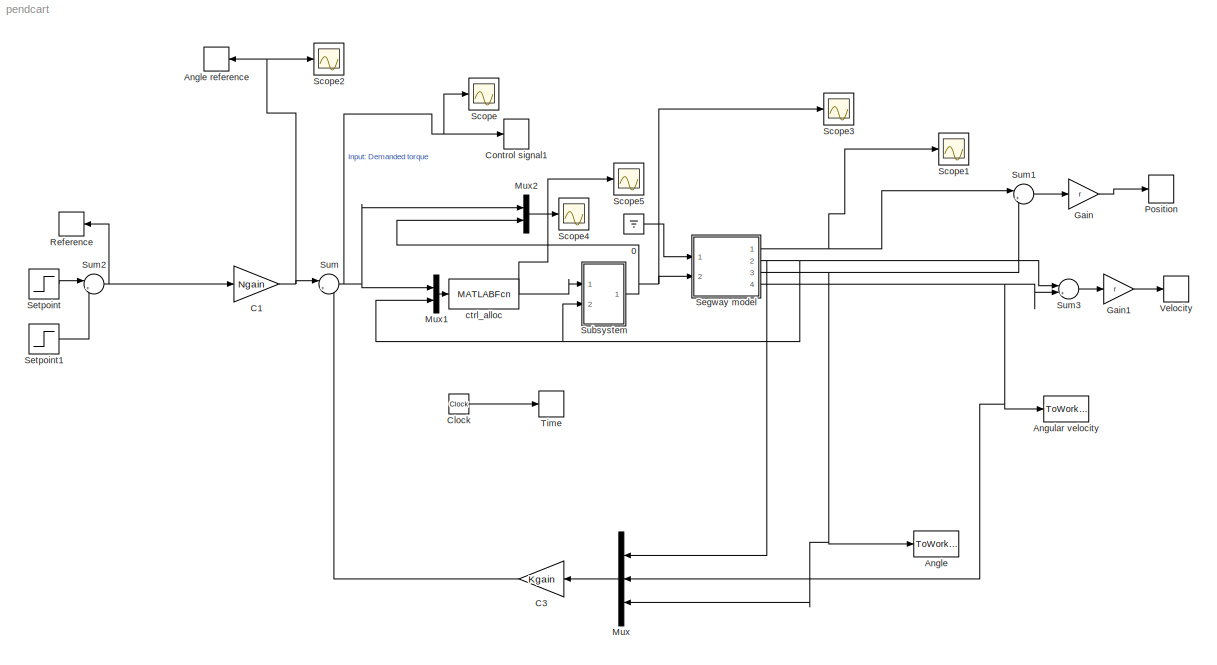
MODEL pendcart
KIND model
BLOCK [Ground] 0
  SID = 94
BLOCK [ToWorkspace] Angle
  MaxDataPoints = inf
  Ports = [1]
  SID = 1
  SampleTime = -1
  VariableName = theta
BLOCK [ToWorkspace] Angle reference
  MaxDataPoints = inf
  Ports = [1]
  SID = 2
  SampleTime = -1
  VariableName = ri
BLOCK [ToWorkspace] Angular velocity
  MaxDataPoints = inf
  Ports = [1]
  SID = 3
  SampleTime = -1
  VariableName = omega
BLOCK [Gain] C1
  Gain = Ngain
  OutDataTypeStr = Inherit: Inherit via internal rule
  ParamDataTypeStr = Inherit: Inherit via internal rule
  SID = 181
  SaturateOnIntegerOverflow = off
BLOCK [Gain] C3
  Gain = Kgain
  Multiplication = Matrix(K*u)
  OutDataTypeStr = Inherit: Inherit via internal rule
  ParamDataTypeStr = Inherit: Inherit via internal rule
  SID = 163
  SaturateOnIntegerOverflow = off
BLOCK [Clock] Clock
  SID = 4
BLOCK [ToWorkspace] Control signal1
  MaxDataPoints = inf
  Ports = [1]
  SID = 5
  SampleTime = -1
  VariableName = u
BLOCK [Gain] Gain
  Gain = r
  OutDataTypeStr = Inherit: Inherit via internal rule
  ParamDataTypeStr = Inherit: Inherit via internal rule
  SID = 170
  SaturateOnIntegerOverflow = off
BLOCK [Gain] Gain1
  Gain = r
  OutDataTypeStr = Inherit: Inherit via internal rule
  ParamDataTypeStr = Inherit: Inherit via internal rule
  SID = 172
  SaturateOnIntegerOverflow = off
BLOCK [Mux] Mux
  DisplayOption = bar
  Inputs = 3
  Ports = [3, 1]
  SID = 164
BLOCK [Mux] Mux1
  DisplayOption = bar
  Inputs = 2
  Ports = [2, 1]
  SID = 205
BLOCK [Mux] Mux2
  DisplayOption = bar
  Inputs = 2
  Ports = [2, 1]
  SID = 225
BLOCK [ToWorkspace] Position
  MaxDataPoints = inf
  Ports = [1]
  SID = 32
  SampleTime = -1
  VariableName = x
BLOCK [ToWorkspace] Reference
  MaxDataPoints = inf
  Ports = [1]
  SID = 33
  SampleTime = -1
  VariableName = r
BLOCK [Scope] Scope
  NumInputPorts = 1
  Ports = [1]
  SID = 165
  ScopeSpecificationString = Simulink.scopes.TimeScopeBlockCfg('CurrentConfiguration', extmgr.ConfigurationSet(extmgr.Configuration('Core','General UI',true),extmgr.Configuration('Core','Source UI',true),extmgr.Configuration('Sources','WiredSimulink',true),extmgr.Configuration('Visuals','Time Domain',true,'SerializedDisplays',{struct('MinYLimReal','-8.77017','MaxYLimReal','8.76972','YLabelReal','','MinYLimMag','0.00000','MaxY...<+1397ch>
BLOCK [Scope] Scope1
  NumInputPorts = 1
  Ports = [1]
  SID = 166
  ScopeSpecificationString = Simulink.scopes.TimeScopeBlockCfg('CurrentConfiguration', extmgr.ConfigurationSet(extmgr.Configuration('Core','General UI',true),extmgr.Configuration('Core','Source UI',true),extmgr.Configuration('Sources','WiredSimulink',true,'DataLoggingVariableName','ScopeData1'),extmgr.Configuration('Visuals','Time Domain',true,'SerializedDisplays',{struct('MinYLimReal','-242452.87703','MaxYLimReal','2181906.5...<+1470ch>
BLOCK [Scope] Scope2
  NumInputPorts = 1
  Ports = [1]
  SID = 167
  ScopeSpecificationString = Simulink.scopes.TimeScopeBlockCfg('CurrentConfiguration', extmgr.ConfigurationSet(extmgr.Configuration('Core','General UI',true),extmgr.Configuration('Core','Source UI',true),extmgr.Configuration('Sources','WiredSimulink',true,'DataLoggingVariableName','ScopeData1'),extmgr.Configuration('Visuals','Time Domain',true,'SerializedDisplays',{struct('MinYLimReal','-7.89219','MaxYLimReal','0.87691','YLab...<+1416ch>
BLOCK [Scope] Scope3
  NumInputPorts = 1
  Ports = [1]
  SID = 208
  ScopeSpecificationString = Simulink.scopes.TimeScopeBlockCfg('CurrentConfiguration', extmgr.ConfigurationSet(extmgr.Configuration('Core','General UI',true),extmgr.Configuration('Core','Source UI',true),extmgr.Configuration('Sources','WiredSimulink',true,'DataLoggingVariableName','ScopeData2'),extmgr.Configuration('Visuals','Time Domain',true,'SerializedDisplays',{struct('MinYLimReal','-0.58356','MaxYLimReal','0.62893','YLab...<+1423ch>
BLOCK [Scope] Scope4
  NumInputPorts = 1
  Ports = [1]
  SID = 226
  ScopeSpecificationString = Simulink.scopes.TimeScopeBlockCfg('CurrentConfiguration', extmgr.ConfigurationSet(extmgr.Configuration('Core','General UI',true),extmgr.Configuration('Core','Source UI',true),extmgr.Configuration('Sources','WiredSimulink',true,'DataLoggingVariableName','ScopeData1'),extmgr.Configuration('Visuals','Time Domain',true,'SerializedDisplays',{struct('MinYLimReal','-3.38216','MaxYLimReal','21.59294','YLa...<+1471ch>
BLOCK [Scope] Scope5
  NumInputPorts = 1
  Ports = [1]
  SID = 231
  ScopeSpecificationString = Simulink.scopes.TimeScopeBlockCfg('CurrentConfiguration', extmgr.ConfigurationSet(extmgr.Configuration('Core','General UI',true),extmgr.Configuration('Core','Source UI',true),extmgr.Configuration('Sources','WiredSimulink',true,'DataLoggingVariableName','ScopeData2'),extmgr.Configuration('Visuals','Time Domain',true,'SerializedDisplays',{struct('MinYLimReal','-504.87276','MaxYLimReal','596.69683','...<+1470ch>
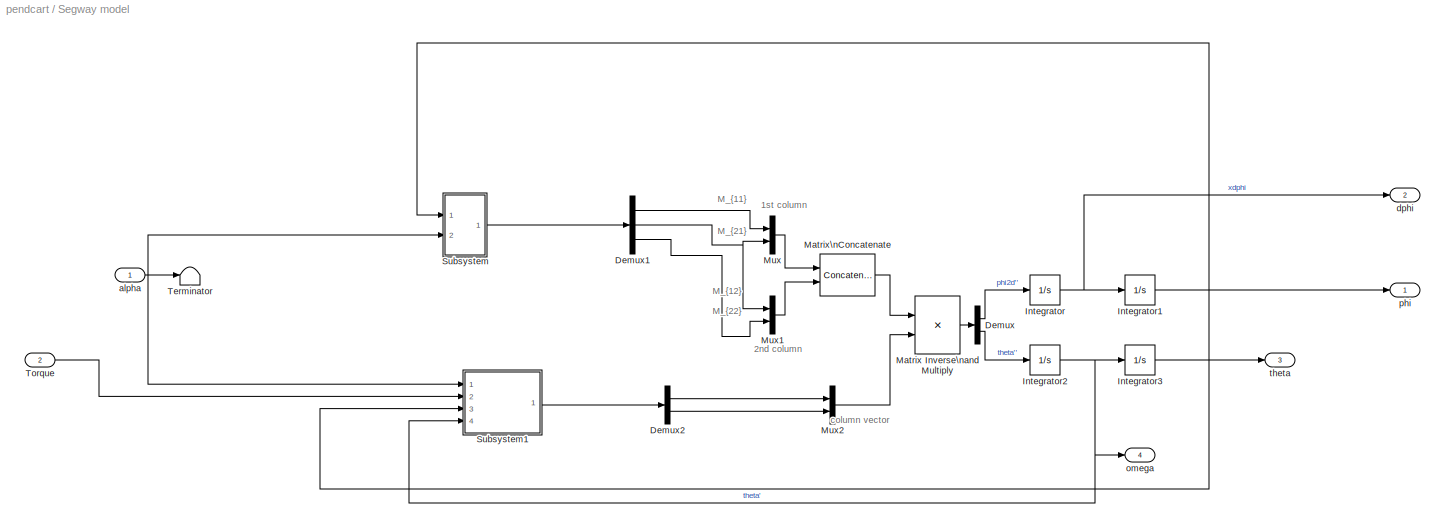
BLOCK [SubSystem] Segway model
  Ports = [2, 4]
  RequestExecContextInheritance = off
  SID = 16
  Variant = off
BLOCK [Demux] Segway model/Demux
  DisplayOption = bar
  Outputs = 2
  Ports = [1, 2]
  SID = 101
BLOCK [Demux] Segway model/Demux1
  DisplayOption = bar
  Outputs = 3
  Ports = [1, 3]
  SID = 133
BLOCK [Demux] Segway model/Demux2
  DisplayOption = bar
  Outputs = 2
  Ports = [1, 2]
  SID = 146
BLOCK [Integrator] Segway model/Integrator
  Ports = [1, 1]
  SID = 46
BLOCK [Integrator] Segway model/Integrator1
  Ports = [1, 1]
  SID = 47
BLOCK [Integrator] Segway model/Integrator2
  Ports = [1, 1]
  SID = 50
BLOCK [Integrator] Segway model/Integrator3
  InitialCondition = theta0
  Ports = [1, 1]
  SID = 51
BLOCK [Product] Segway model/Matrix Inverse\nand Multiply
  InputSameDT = off
  Inputs = /*
  Multiplication = Matrix(*)
  OutDataTypeStr = Inherit: Inherit via internal rule
  Ports = [2, 1]
  RndMeth = Floor
  SID = 98
  SaturateOnIntegerOverflow = off
BLOCK [Concatenate] Segway model/Matrix\nConcatenate
  ConcatenateDimension = 2
  Mode = Multidimensional array
  Ports = [2, 1]
  SID = 100
BLOCK [Mux] Segway model/Mux
  DisplayOption = bar
  Inputs = 2
  Ports = [2, 1]
  SID = 102
BLOCK [Mux] Segway model/Mux1
  DisplayOption = bar
  Inputs = 2
  Ports = [2, 1]
  SID = 103
BLOCK [Mux] Segway model/Mux2
  DisplayOption = bar
  Inputs = 2
  Ports = [2, 1]
  SID = 106
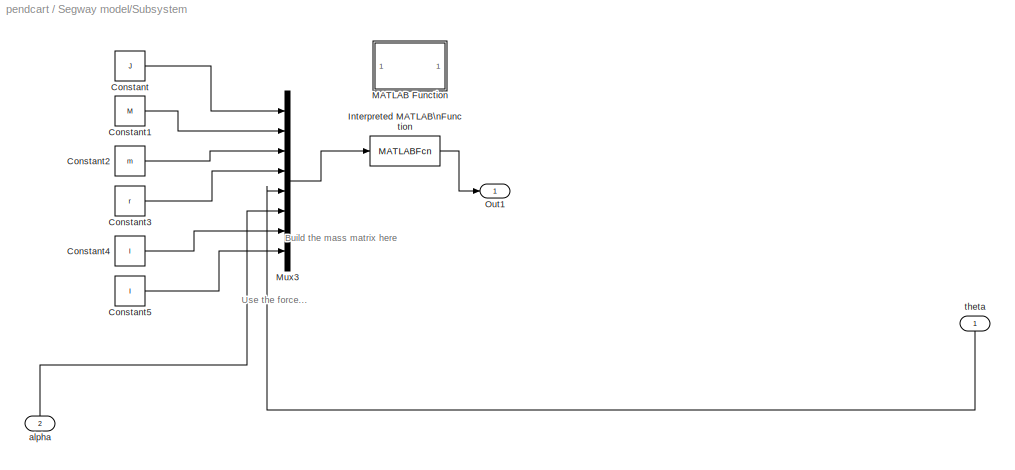
BLOCK [SubSystem] Segway model/Subsystem
  Ports = [2, 1]
  RequestExecContextInheritance = off
  SID = 141
  Variant = off
BLOCK [Constant] Segway model/Subsystem/Constant
  SID = 135
  Value = J
BLOCK [Constant] Segway model/Subsystem/Constant1
  SID = 136
  Value = M
BLOCK [Constant] Segway model/Subsystem/Constant2
  SID = 137
  Value = m
BLOCK [Constant] Segway model/Subsystem/Constant3
  SID = 138
  Value = r
BLOCK [Constant] Segway model/Subsystem/Constant4
  SID = 139
  Value = l
BLOCK [Constant] Segway model/Subsystem/Constant5
  SID = 140
  Value = I
BLOCK [MATLABFcn] Segway model/Subsystem/Interpreted MATLAB\nFunction
  MATLABFcn = massMat
  Ports = [1, 1]
  SID = 169
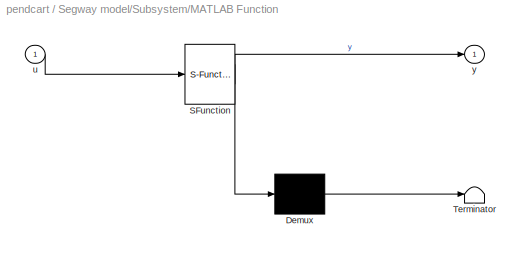
BLOCK [SubSystem] Segway model/Subsystem/MATLAB Function
  Commented = on
  ErrorFcn = Stateflow.Translate.translate
  PermitHierarchicalResolution = ExplicitOnly
  Ports = [1, 1]
  RequestExecContextInheritance = off
  SFBlockType = MATLAB Function
  SID = 132
  TreatAsAtomicUnit = on
  Variant = off
BLOCK [Demux] Segway model/Subsystem/MATLAB Function/ Demux 
  Outputs = 1
  Ports = [1, 1]
  SID = 132::20
BLOCK [S-Function] Segway model/Subsystem/MATLAB Function/ SFunction 
  EnableBusSupport = on
  FunctionName = sf_sfun
  PortCounts = [1 2]
  Ports = [1, 2]
  SFcnIsStateOwnerBlock = off
  SFunctionDeploymentMode = off
  SID = 132::19
  Tag = Stateflow S-Function pendcart 2
BLOCK [Terminator] Segway model/Subsystem/MATLAB Function/ Terminator 
  SID = 132::21
BLOCK [Inport] Segway model/Subsystem/MATLAB Function/u
  IconDisplay = Port number
  SID = 132::1
BLOCK [Outport] Segway model/Subsystem/MATLAB Function/y
  IconDisplay = Port number
  SID = 132::5
BLOCK [Mux] Segway model/Subsystem/Mux3
  DisplayOption = bar
  Inputs = 8
  Ports = [8, 1]
  SID = 134
BLOCK [Outport] Segway model/Subsystem/Out1
  IconDisplay = Port number
  SID = 144
BLOCK [Inport] Segway model/Subsystem/alpha
  IconDisplay = Port number
  Port = 2
  SID = 143
BLOCK [Inport] Segway model/Subsystem/theta
  IconDisplay = Port number
  SID = 142
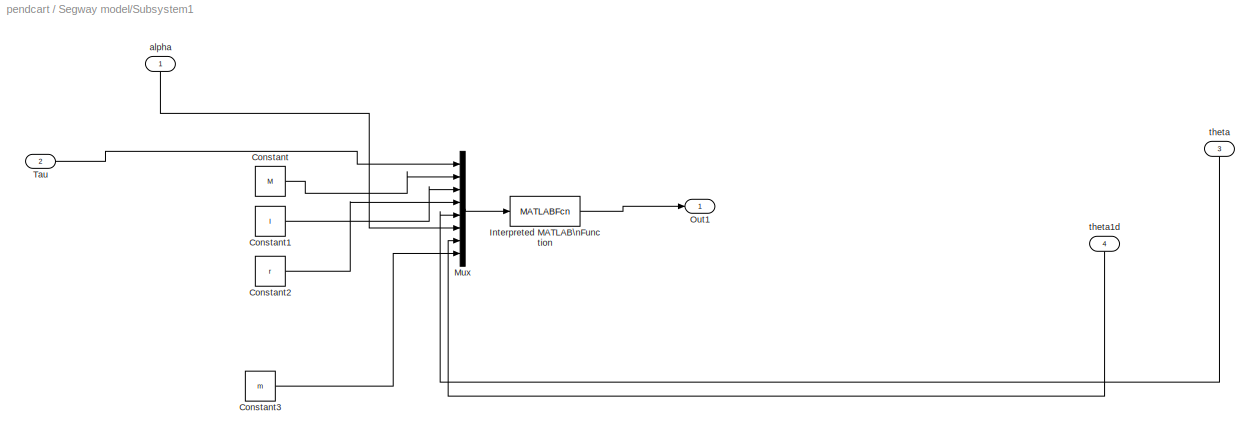
BLOCK [SubSystem] Segway model/Subsystem1
  Ports = [4, 1]
  RequestExecContextInheritance = off
  SID = 153
  Variant = off
BLOCK [Constant] Segway model/Subsystem1/Constant
  SID = 149
  Value = M
BLOCK [Constant] Segway model/Subsystem1/Constant1
  SID = 150
  Value = l
BLOCK [Constant] Segway model/Subsystem1/Constant2
  SID = 151
  Value = r
BLOCK [Constant] Segway model/Subsystem1/Constant3
  SID = 152
  Value = m
BLOCK [MATLABFcn] Segway model/Subsystem1/Interpreted MATLAB\nFunction
  MATLABFcn = ElementMatrix
  Ports = [1, 1]
  SID = 174
BLOCK [Mux] Segway model/Subsystem1/Mux
  DisplayOption = bar
  Inputs = 8
  Ports = [8, 1]
  SID = 175
BLOCK [Outport] Segway model/Subsystem1/Out1
  IconDisplay = Port number
  SID = 158
BLOCK [Inport] Segway model/Subsystem1/Tau
  IconDisplay = Port number
  Port = 2
  SID = 155
BLOCK [Inport] Segway model/Subsystem1/alpha
  IconDisplay = Port number
  SID = 154
BLOCK [Inport] Segway model/Subsystem1/theta
  IconDisplay = Port number
  Port = 3
  SID = 156
BLOCK [Inport] Segway model/Subsystem1/theta1d
  IconDisplay = Port number
  Port = 4
  SID = 157
BLOCK [Terminator] Segway model/Terminator
  SID = 115
BLOCK [Inport] Segway model/Torque
  IconDisplay = Port number
  Port = 2
  SID = 17
BLOCK [Inport] Segway model/alpha
  IconDisplay = Port number
  SID = 87
BLOCK [Outport] Segway model/dphi
  IconDisplay = Port number
  Port = 2
  SID = 27
BLOCK [Outport] Segway model/omega
  IconDisplay = Port number
  Port = 4
  SID = 29
BLOCK [Outport] Segway model/phi
  IconDisplay = Port number
  SID = 26
BLOCK [Outport] Segway model/theta
  IconDisplay = Port number
  Port = 3
  SID = 28
BLOCK [Step] Setpoint
  After = 0.5
  SID = 34
  SampleTime = 0
  Time = 10
BLOCK [Step] Setpoint1
  After = -0.5
  SID = 85
  SampleTime = 0
  Time = 20
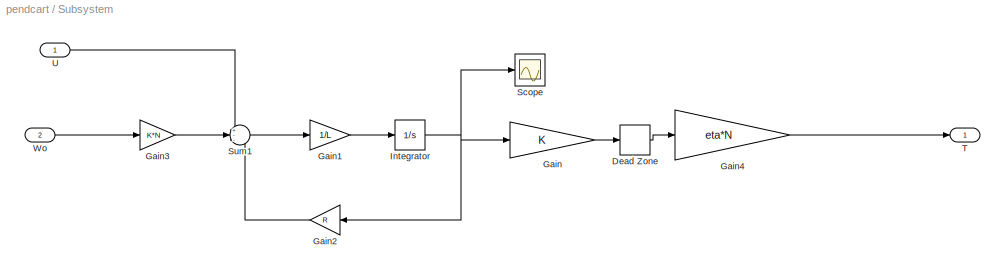
BLOCK [SubSystem] Subsystem
  Ports = [2, 1]
  RequestExecContextInheritance = off
  SID = 192
  Variant = off
BLOCK [DeadZone] Subsystem/Dead Zone
  LowerValue = -taum
  SID = 195
  UpperValue = taum
BLOCK [Gain] Subsystem/Gain
  Gain = K
  OutDataTypeStr = Inherit: Inherit via internal rule
  ParamDataTypeStr = Inherit: Inherit via internal rule
  SID = 196
  SaturateOnIntegerOverflow = off
BLOCK [Gain] Subsystem/Gain1
  Gain = 1/L
  OutDataTypeStr = Inherit: Inherit via internal rule
  ParamDataTypeStr = Inherit: Inherit via internal rule
  SID = 197
  SaturateOnIntegerOverflow = off
BLOCK [Gain] Subsystem/Gain2
  Gain = R
  OutDataTypeStr = Inherit: Inherit via internal rule
  ParamDataTypeStr = Inherit: Inherit via internal rule
  SID = 198
  SaturateOnIntegerOverflow = off
BLOCK [Gain] Subsystem/Gain3
  Gain = K*N
  OutDataTypeStr = Inherit: Inherit via internal rule
  ParamDataTypeStr = Inherit: Inherit via internal rule
  SID = 199
  SaturateOnIntegerOverflow = off
BLOCK [Gain] Subsystem/Gain4
  Gain = eta*N
  OutDataTypeStr = Inherit: Inherit via internal rule
  ParamDataTypeStr = Inherit: Inherit via internal rule
  SID = 200
  SaturateOnIntegerOverflow = off
BLOCK [Integrator] Subsystem/Integrator
  Ports = [1, 1]
  SID = 202
BLOCK [Scope] Subsystem/Scope
  NumInputPorts = 1
  Ports = [1]
  SID = 207
  ScopeSpecificationString = Simulink.scopes.TimeScopeBlockCfg('CurrentConfiguration', extmgr.ConfigurationSet(extmgr.Configuration('Core','General UI',true),extmgr.Configuration('Core','Source UI',true),extmgr.Configuration('Sources','WiredSimulink',true,'DataLoggingVariableName','ScopeData1'),extmgr.Configuration('Visuals','Time Domain',true,'SerializedDisplays',{struct('MinYLimReal','-2129417.85384','MaxYLimReal','3496729....<+1470ch>
BLOCK [Sum] Subsystem/Sum1
  IconShape = round
  InputSameDT = off
  Inputs = +--
  OutDataTypeStr = Inherit: Inherit via internal rule
  Ports = [3, 1]
  SID = 203
  SaturateOnIntegerOverflow = off
BLOCK [Outport] Subsystem/T
  IconDisplay = Port number
  SID = 204
BLOCK [Inport] Subsystem/U
  IconDisplay = Port number
  SID = 193
BLOCK [Inport] Subsystem/Wo
  IconDisplay = Port number
  Port = 2
  SID = 194
BLOCK [Sum] Sum
  IconShape = round
  InputSameDT = off
  Inputs = |+-
  OutDataTypeStr = Inherit: Inherit via internal rule
  Ports = [2, 1]
  SID = 35
  SaturateOnIntegerOverflow = off
BLOCK [Sum] Sum1
  IconShape = round
  InputSameDT = off
  Inputs = |++
  OutDataTypeStr = Inherit: Inherit via internal rule
  Ports = [2, 1]
  SID = 171
  SaturateOnIntegerOverflow = off
BLOCK [Sum] Sum2
  IconShape = round
  InputSameDT = off
  Inputs = |++
  OutDataTypeStr = Inherit: Inherit via internal rule
  Ports = [2, 1]
  SID = 86
  SaturateOnIntegerOverflow = off
BLOCK [Sum] Sum3
  IconShape = round
  InputSameDT = off
  Inputs = |++
  OutDataTypeStr = Inherit: Inherit via internal rule
  Ports = [2, 1]
  SID = 173
  SaturateOnIntegerOverflow = off
BLOCK [ToWorkspace] Time
  MaxDataPoints = inf
  Ports = [1]
  SID = 40
  SampleTime = -1
  VariableName = t
BLOCK [ToWorkspace] Velocity
  MaxDataPoints = inf
  Ports = [1]
  SID = 41
  SampleTime = -1
  VariableName = v
BLOCK [MATLABFcn] ctrl_alloc
  MATLABFcn = findU
  Ports = [1, 1]
  SID = 191
ANNOTATION Segway model: 1st column
ANNOTATION Segway model: 2nd column
ANNOTATION Segway model: M_{11}
ANNOTATION Segway model: M_{12}
ANNOTATION Segway model: M_{21}
ANNOTATION Segway model: M_{22}
ANNOTATION Segway model: column vector
ANNOTATION Segway model/Subsystem: Build the mass matrix here
ANNOTATION Segway model/Subsystem: Use the force...
LINE 0:1 -> Segway model:1
NET C1:1 -> Angle reference:1, Scope2:1, Sum:1
LINE C3:1 -> Sum:2
LINE Clock:1 -> Time:1
LINE Gain1:1 -> Velocity:1
LINE Gain:1 -> Position:1
LINE Mux1:1 -> ctrl_alloc:1
LINE Mux2:1 -> Scope4:1
LINE Mux:1 -> C3:1
LINE Segway model/Demux1:1 -> Segway model/Mux:1
NET Segway model/Demux1:2 -> Segway model/Mux1:1, Segway model/Mux:2
LINE Segway model/Demux1:3 -> Segway model/Mux1:2
LINE Segway model/Demux2:1 -> Segway model/Mux2:1
LINE Segway model/Demux2:2 -> Segway model/Mux2:2
LINE Segway model/Demux:1 -> Segway model/Integrator:1
LINE Segway model/Demux:2 -> Segway model/Integrator2:1
LINE Segway model/Integrator1:1 -> Segway model/phi:1
NET Segway model/Integrator2:1 -> Segway model/Integrator3:1, Segway model/Subsystem1:4, Segway model/omega:1
NET Segway model/Integrator3:1 -> Segway model/Subsystem1:3, Segway model/Subsystem:1, Segway model/theta:1
NET Segway model/Integrator:1 -> Segway model/Integrator1:1, Segway model/dphi:1
LINE Segway model/Matrix Inverse\nand Multiply:1 -> Segway model/Demux:1
LINE Segway model/Matrix\nConcatenate:1 -> Segway model/Matrix Inverse\nand Multiply:1
LINE Segway model/Mux1:1 -> Segway model/Matrix\nConcatenate:2
LINE Segway model/Mux2:1 -> Segway model/Matrix Inverse\nand Multiply:2
LINE Segway model/Mux:1 -> Segway model/Matrix\nConcatenate:1
LINE Segway model/Subsystem/Constant1:1 -> Segway model/Subsystem/Mux3:2
LINE Segway model/Subsystem/Constant2:1 -> Segway model/Subsystem/Mux3:3
LINE Segway model/Subsystem/Constant3:1 -> Segway model/Subsystem/Mux3:4
LINE Segway model/Subsystem/Constant4:1 -> Segway model/Subsystem/Mux3:7
LINE Segway model/Subsystem/Constant5:1 -> Segway model/Subsystem/Mux3:8
LINE Segway model/Subsystem/Constant:1 -> Segway model/Subsystem/Mux3:1
LINE Segway model/Subsystem/Interpreted MATLAB\nFunction:1 -> Segway model/Subsystem/Out1:1
LINE Segway model/Subsystem/MATLAB Function/ Demux :1 -> Segway model/Subsystem/MATLAB Function/ Terminator :1
LINE Segway model/Subsystem/MATLAB Function/ SFunction :1 -> Segway model/Subsystem/MATLAB Function/ Demux :1
LINE Segway model/Subsystem/MATLAB Function/ SFunction :2 -> Segway model/Subsystem/MATLAB Function/y:1
LINE Segway model/Subsystem/MATLAB Function/u:1 -> Segway model/Subsystem/MATLAB Function/ SFunction :1
LINE Segway model/Subsystem/Mux3:1 -> Segway model/Subsystem/Interpreted MATLAB\nFunction:1
LINE Segway model/Subsystem/alpha:1 -> Segway model/Subsystem/Mux3:6
LINE Segway model/Subsystem/theta:1 -> Segway model/Subsystem/Mux3:5
LINE Segway model/Subsystem1/Constant1:1 -> Segway model/Subsystem1/Mux:3
LINE Segway model/Subsystem1/Constant2:1 -> Segway model/Subsystem1/Mux:4
LINE Segway model/Subsystem1/Constant3:1 -> Segway model/Subsystem1/Mux:8
LINE Segway model/Subsystem1/Constant:1 -> Segway model/Subsystem1/Mux:2
LINE Segway model/Subsystem1/Interpreted MATLAB\nFunction:1 -> Segway model/Subsystem1/Out1:1
LINE Segway model/Subsystem1/Mux:1 -> Segway model/Subsystem1/Interpreted MATLAB\nFunction:1
LINE Segway model/Subsystem1/Tau:1 -> Segway model/Subsystem1/Mux:1
LINE Segway model/Subsystem1/alpha:1 -> Segway model/Subsystem1/Mux:6
LINE Segway model/Subsystem1/theta1d:1 -> Segway model/Subsystem1/Mux:7
LINE Segway model/Subsystem1/theta:1 -> Segway model/Subsystem1/Mux:5
LINE Segway model/Subsystem1:1 -> Segway model/Demux2:1
LINE Segway model/Subsystem:1 -> Segway model/Demux1:1
LINE Segway model/Torque:1 -> Segway model/Subsystem1:2
NET Segway model/alpha:1 -> Segway model/Subsystem1:1, Segway model/Subsystem:2, Segway model/Terminator:1
NET Segway model:1 -> Scope1:1, Sum1:1
NET Segway model:2 -> Mux1:2, Mux:1, Subsystem:2, Sum3:1
NET Segway model:3 -> Angle:1, Mux:3, Sum1:2
NET Segway model:4 -> Angular velocity:1, Mux:2, Sum3:2
LINE Setpoint1:1 -> Sum2:2
LINE Setpoint:1 -> Sum2:1
LINE Subsystem/Dead Zone:1 -> Subsystem/Gain4:1
LINE Subsystem/Gain1:1 -> Subsystem/Integrator:1
LINE Subsystem/Gain2:1 -> Subsystem/Sum1:3
LINE Subsystem/Gain3:1 -> Subsystem/Sum1:2
LINE Subsystem/Gain4:1 -> Subsystem/T:1
LINE Subsystem/Gain:1 -> Subsystem/Dead Zone:1
NET Subsystem/Integrator:1 -> Subsystem/Gain2:1, Subsystem/Gain:1, Subsystem/Scope:1
LINE Subsystem/Sum1:1 -> Subsystem/Gain1:1
LINE Subsystem/U:1 -> Subsystem/Sum1:1
LINE Subsystem/Wo:1 -> Subsystem/Gain3:1
NET Subsystem:1 -> Mux2:2, Scope3:1, Segway model:2
LINE Sum1:1 -> Gain:1
NET Sum2:1 -> C1:1, Reference:1
LINE Sum3:1 -> Gain1:1
NET Sum:1 -> Control signal1:1, Mux1:1, Mux2:1, Scope:1
NET ctrl_alloc:1 -> Scope5:1, Subsystem:1
note: NET lines group one-source signal fan-out (src -> all destinations, sorted); 1:1 wires keep LINE
CHART Segway model/Subsystem/MATLAB Function states=1 transitions=1
  STATE_LABEL 'eML_blk_kernel()'
